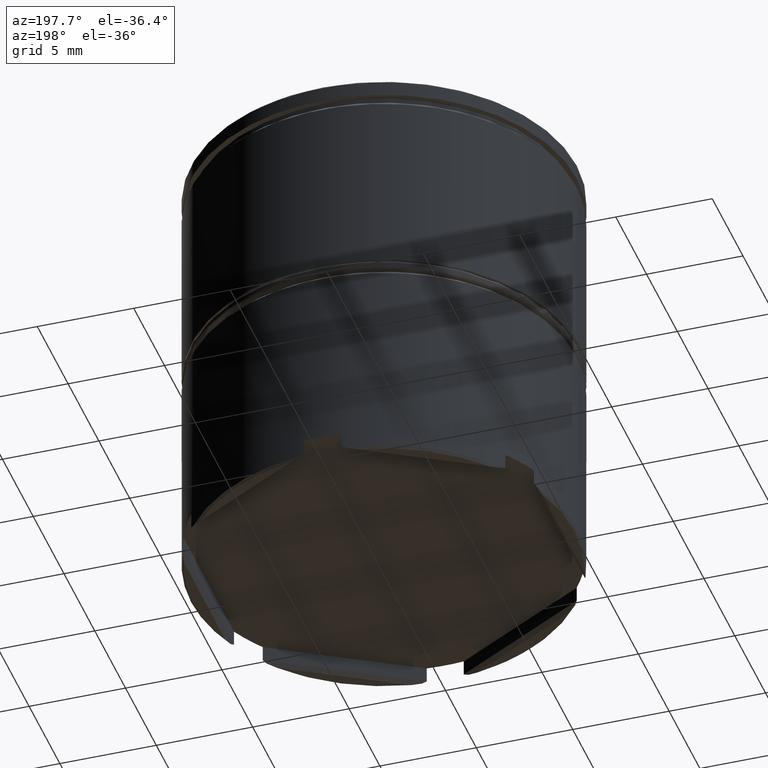
[diagram: clean part render]
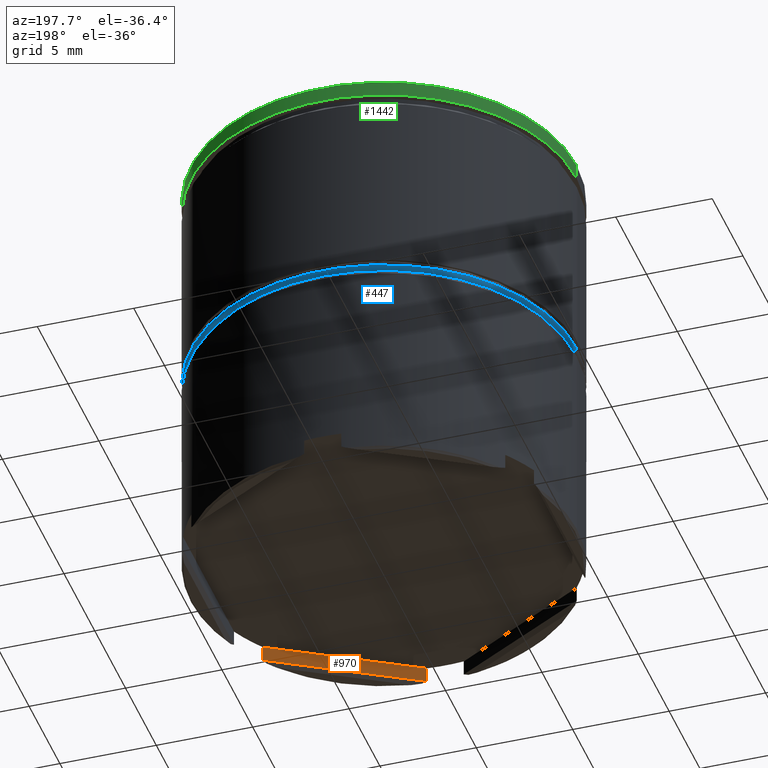
[diagram: same view with three faces highlighted in distinct colors, each labeled with its STEP entity id]
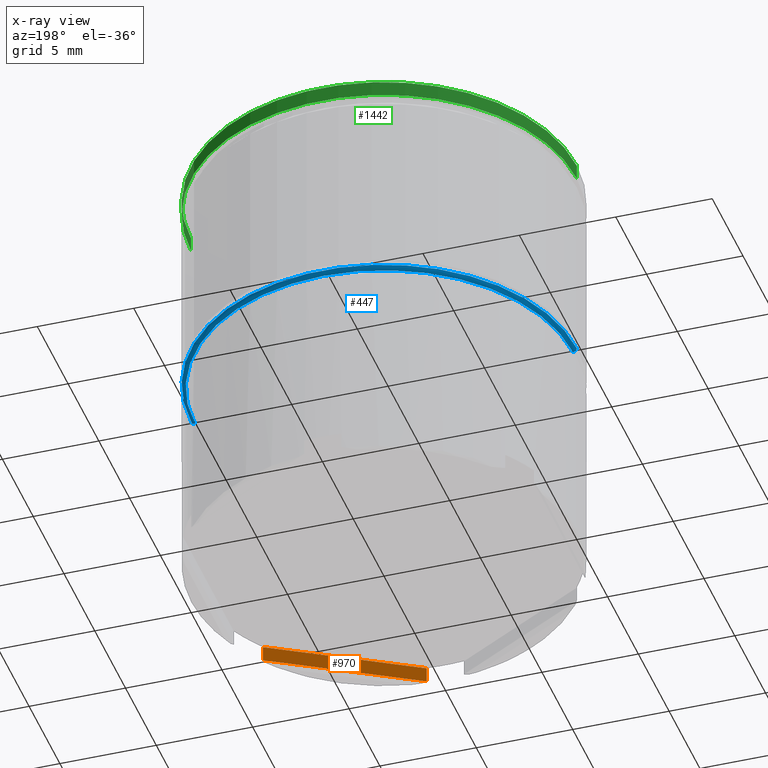
[diagram: x-ray of the same camera — body ghosted, the three highlighted faces saturated]
A machine part, auxiliary view with three faces highlighted in distinct colors.
The next image is the same camera in x-ray (body ghosted, the three faces saturated) — at least one of them is partly hidden behind the body in this view.
Their STEP definitions:

[orange] entity #970 — the highlighted planar face has unit normal (0.5, -0.866, 0).
#57 = DIRECTION ( 'NONE',  ( -0.8660254037844387076, -0.4999999999999997224, 0.000000000000000000 ) ) ;
#177 = DIRECTION ( 'NONE',  ( 0.8660254037844387076, 0.4999999999999997224, 0.000000000000000000 ) ) ;
#196 = ORIENTED_EDGE ( 'NONE', *, *, #1228, .T. ) ;
#224 = VERTEX_POINT ( 'NONE', #1153 ) ;
#333 = VECTOR ( 'NONE', #457, 1000.000000000000114 ) ;
#345 = DIRECTION ( 'NONE',  ( -0.000000000000000000, -0.000000000000000000, 1.000000000000000000 ) ) ;
#369 = FACE_OUTER_BOUND ( 'NONE', #1159, .T. ) ;
#457 = DIRECTION ( 'NONE',  ( -0.8660254037844387076, -0.4999999999999997224, 0.000000000000000000 ) ) ;
#482 = CARTESIAN_POINT ( 'NONE',  ( 9.100000000000001421, -5.253887449625596950, -21.50000000000000000 ) ) ;
#515 = ORIENTED_EDGE ( 'NONE', *, *, #1131, .T. ) ;
#548 = VERTEX_POINT ( 'NONE', #1296 ) ;
#582 = DIRECTION ( 'NONE',  ( 0.000000000000000000, 0.000000000000000000, -1.000000000000000000 ) ) ;
#584 = CARTESIAN_POINT ( 'NONE',  ( 0.9593872389242583676, -9.953872418601179106, 0.000000000000000000 ) ) ;
#636 = LINE ( 'NONE', #1158, #1028 ) ;
#641 = DIRECTION ( 'NONE',  ( 0.4999999999999997780, -0.8660254037844388186, 0.000000000000000000 ) ) ;
#681 = ORIENTED_EDGE ( 'NONE', *, *, #1467, .F. ) ;
#710 = VECTOR ( 'NONE', #582, 1000.000000000000000 ) ;
#743 = LINE ( 'NONE', #482, #333 ) ;
#788 = CARTESIAN_POINT ( 'NONE',  ( 0.9593872389242552590, -9.953872418601180883, -21.50000000000000000 ) ) ;
#951 = EDGE_CURVE ( 'NONE', #224, #1041, #1338, .T. ) ;
#970 = ADVANCED_FACE ( 'NONE', ( #369 ), #1451, .F. ) ;
#1028 = VECTOR ( 'NONE', #57, 1000.000000000000114 ) ;
#1041 = VERTEX_POINT ( 'NONE', #1174 ) ;
#1089 = CARTESIAN_POINT ( 'NONE',  ( 8.140612761075740167, -5.807789930275612633, 0.000000000000000000 ) ) ;
#1093 = LINE ( 'NONE', #584, #1340 ) ;
#1131 = EDGE_CURVE ( 'NONE', #548, #1212, #1093, .T. ) ;
#1137 = ORIENTED_EDGE ( 'NONE', *, *, #951, .T. ) ;
#1153 = CARTESIAN_POINT ( 'NONE',  ( 8.140612761075741943, -5.807789930275610857, -21.50000000000000000 ) ) ;
#1158 = CARTESIAN_POINT ( 'NONE',  ( 1.173611396773171611, -9.830190043400186539, -22.30000000000000071 ) ) ;
#1159 = EDGE_LOOP ( 'NONE', ( #1137, #196, #515, #681 ) ) ;
#1174 = CARTESIAN_POINT ( 'NONE',  ( 8.140612761075740167, -5.807789930275612633, -22.30000000000000071 ) ) ;
#1191 = AXIS2_PLACEMENT_3D ( 'NONE', #1631, #641, #177 ) ;
#1212 = VERTEX_POINT ( 'NONE', #788 ) ;
#1228 = EDGE_CURVE ( 'NONE', #1041, #548, #636, .T. ) ;
#1296 = CARTESIAN_POINT ( 'NONE',  ( 0.9593872389242583676, -9.953872418601179106, -22.30000000000000071 ) ) ;
#1338 = LINE ( 'NONE', #1089, #710 ) ;
#1340 = VECTOR ( 'NONE', #345, 1000.000000000000000 ) ;
#1451 = PLANE ( 'NONE',  #1191 ) ;
#1467 = EDGE_CURVE ( 'NONE', #224, #1212, #743, .T. ) ;
#1631 = CARTESIAN_POINT ( 'NONE',  ( 9.100000000000001421, -5.253887449625596950, -21.50000000000000000 ) ) ;

[blue] entity #447 — the highlighted toroidal blend (fillet) surface has major radius 9.8 mm and minor (blend) radius 0.2 mm.
#5 = TOROIDAL_SURFACE ( 'NONE', #750, 9.799999999999998934, 0.2000000000000000111 ) ;
#27 = CARTESIAN_POINT ( 'NONE',  ( 0.000000000000000000, 0.000000000000000000, -11.29999999999999716 ) ) ;
#30 = DIRECTION ( 'NONE',  ( 1.000000000000000000, 0.000000000000000000, 0.000000000000000000 ) ) ;
#37 = CIRCLE ( 'NONE', #525, 0.2000000000000005107 ) ;
#52 = VERTEX_POINT ( 'NONE', #455 ) ;
#59 = EDGE_CURVE ( 'NONE', #1530, #52, #889, .T. ) ;
#104 = DIRECTION ( 'NONE',  ( 0.000000000000000000, 0.000000000000000000, -1.000000000000000000 ) ) ;
#141 = AXIS2_PLACEMENT_3D ( 'NONE', #1390, #1526, #30 ) ;
#193 = AXIS2_PLACEMENT_3D ( 'NONE', #27, #517, #540 ) ;
#229 = VERTEX_POINT ( 'NONE', #1424 ) ;
#323 = EDGE_LOOP ( 'NONE', ( #1412, #1302, #851, #669 ) ) ;
#354 = CARTESIAN_POINT ( 'NONE',  ( -9.799999999999998934, 1.200153863164406148E-15, -11.29999999999999716 ) ) ;
#359 = AXIS2_PLACEMENT_3D ( 'NONE', #354, #865, #591 ) ;
#376 = FACE_OUTER_BOUND ( 'NONE', #323, .T. ) ;
#447 = ADVANCED_FACE ( 'NONE', ( #376 ), #5, .T. ) ;
#455 = CARTESIAN_POINT ( 'NONE',  ( -10.00000000000000000, 1.224646799147353059E-15, -11.29999999999999716 ) ) ;
#466 = VERTEX_POINT ( 'NONE', #1141 ) ;
#494 = CIRCLE ( 'NONE', #141, 9.799999999999998934 ) ;
#517 = DIRECTION ( 'NONE',  ( 0.000000000000000000, 0.000000000000000000, 1.000000000000000000 ) ) ;
#525 = AXIS2_PLACEMENT_3D ( 'NONE', #946, #707, #104 ) ;
#540 = DIRECTION ( 'NONE',  ( 1.000000000000000000, 0.000000000000000000, 0.000000000000000000 ) ) ;
#591 = DIRECTION ( 'NONE',  ( -1.000000000000000000, 1.224646799147353207E-16, 0.000000000000000000 ) ) ;
#669 = ORIENTED_EDGE ( 'NONE', *, *, #687, .F. ) ;
#687 = EDGE_CURVE ( 'NONE', #229, #466, #37, .T. ) ;
#707 = DIRECTION ( 'NONE',  ( 0.000000000000000000, -1.000000000000000000, 0.000000000000000000 ) ) ;
#750 = AXIS2_PLACEMENT_3D ( 'NONE', #852, #973, #1484 ) ;
#851 = ORIENTED_EDGE ( 'NONE', *, *, #1000, .F. ) ;
#852 = CARTESIAN_POINT ( 'NONE',  ( 0.000000000000000000, 0.000000000000000000, -11.29999999999999716 ) ) ;
#865 = DIRECTION ( 'NONE',  ( 1.224646799147353207E-16, 1.000000000000000000, -0.000000000000000000 ) ) ;
#889 = CIRCLE ( 'NONE', #359, 0.2000000000000005107 ) ;
#946 = CARTESIAN_POINT ( 'NONE',  ( 9.799999999999998934, 0.000000000000000000, -11.29999999999999716 ) ) ;
#973 = DIRECTION ( 'NONE',  ( 0.000000000000000000, 0.000000000000000000, 1.000000000000000000 ) ) ;
#1000 = EDGE_CURVE ( 'NONE', #466, #52, #1124, .T. ) ;
#1124 = CIRCLE ( 'NONE', #193, 10.00000000000000000 ) ;
#1141 = CARTESIAN_POINT ( 'NONE',  ( 10.00000000000000000, 0.000000000000000000, -11.29999999999999716 ) ) ;
#1302 = ORIENTED_EDGE ( 'NONE', *, *, #59, .T. ) ;
#1367 = EDGE_CURVE ( 'NONE', #1530, #229, #494, .T. ) ;
#1390 = CARTESIAN_POINT ( 'NONE',  ( 0.000000000000000000, 0.000000000000000000, -11.49999999999999822 ) ) ;
#1412 = ORIENTED_EDGE ( 'NONE', *, *, #1367, .F. ) ;
#1424 = CARTESIAN_POINT ( 'NONE',  ( 9.799999999999998934, 0.000000000000000000, -11.49999999999999822 ) ) ;
#1484 = DIRECTION ( 'NONE',  ( 1.000000000000000000, 0.000000000000000000, 0.000000000000000000 ) ) ;
#1526 = DIRECTION ( 'NONE',  ( -0.000000000000000000, -0.000000000000000000, -1.000000000000000000 ) ) ;
#1530 = VERTEX_POINT ( 'NONE', #1560 ) ;
#1560 = CARTESIAN_POINT ( 'NONE',  ( -9.799999999999998934, 1.212400331155879505E-15, -11.49999999999999822 ) ) ;

[green] entity #1442 — the highlighted cylindrical surface (partial cylindrical patch) has radius 10 mm, axis along (-0, -0, 1).
#11 = AXIS2_PLACEMENT_3D ( 'NONE', #795, #416, #15 ) ;
#15 = DIRECTION ( 'NONE',  ( 1.000000000000000000, 0.000000000000000000, 0.000000000000000000 ) ) ;
#79 = ORIENTED_EDGE ( 'NONE', *, *, #186, .T. ) ;
#93 = CARTESIAN_POINT ( 'NONE',  ( 10.00000000000000000, 0.000000000000000000, -0.1000000000000011297 ) ) ;
#114 = CIRCLE ( 'NONE', #419, 10.00000000000000000 ) ;
#171 = CYLINDRICAL_SURFACE ( 'NONE', #11, 10.00000000000000000 ) ;
#186 = EDGE_CURVE ( 'NONE', #1504, #630, #114, .T. ) ;
#210 = CARTESIAN_POINT ( 'NONE',  ( 0.000000000000000000, 0.000000000000000000, -0.8749999999999998890 ) ) ;
#290 = CARTESIAN_POINT ( 'NONE',  ( -10.00000000000000000, 1.224646799147353256E-15, -0.8749999999999998890 ) ) ;
#335 = DIRECTION ( 'NONE',  ( -0.000000000000000000, -0.000000000000000000, 1.000000000000000000 ) ) ;
#367 = CARTESIAN_POINT ( 'NONE',  ( -10.00000000000000000, 1.224646799147353256E-15, -0.1000000000000011297 ) ) ;
#383 = DIRECTION ( 'NONE',  ( 0.000000000000000000, 0.000000000000000000, -1.000000000000000000 ) ) ;
#395 = DIRECTION ( 'NONE',  ( 1.000000000000000000, 0.000000000000000000, 0.000000000000000000 ) ) ;
#416 = DIRECTION ( 'NONE',  ( -0.000000000000000000, -0.000000000000000000, 1.000000000000000000 ) ) ;
#419 = AXIS2_PLACEMENT_3D ( 'NONE', #1004, #383, #395 ) ;
#442 = VECTOR ( 'NONE', #680, 1000.000000000000000 ) ;
#630 = VERTEX_POINT ( 'NONE', #93 ) ;
#680 = DIRECTION ( 'NONE',  ( -0.000000000000000000, -0.000000000000000000, 1.000000000000000000 ) ) ;
#683 = EDGE_CURVE ( 'NONE', #1183, #1400, #837, .T. ) ;
#691 = DIRECTION ( 'NONE',  ( -0.000000000000000000, -0.000000000000000000, 1.000000000000000000 ) ) ;
#795 = CARTESIAN_POINT ( 'NONE',  ( 0.000000000000000000, 0.000000000000000000, 0.000000000000000000 ) ) ;
#802 = LINE ( 'NONE', #1309, #926 ) ;
#829 = LINE ( 'NONE', #1447, #442 ) ;
#837 = CIRCLE ( 'NONE', #886, 10.00000000000000000 ) ;
#848 = DIRECTION ( 'NONE',  ( 1.000000000000000000, 0.000000000000000000, 0.000000000000000000 ) ) ;
#886 = AXIS2_PLACEMENT_3D ( 'NONE', #210, #335, #848 ) ;
#926 = VECTOR ( 'NONE', #691, 1000.000000000000000 ) ;
#1004 = CARTESIAN_POINT ( 'NONE',  ( 0.000000000000000000, 0.000000000000000000, -0.1000000000000011297 ) ) ;
#1057 = EDGE_CURVE ( 'NONE', #1400, #1504, #829, .T. ) ;
#1118 = CARTESIAN_POINT ( 'NONE',  ( 10.00000000000000000, 0.000000000000000000, -0.8749999999999998890 ) ) ;
#1183 = VERTEX_POINT ( 'NONE', #1118 ) ;
#1245 = ORIENTED_EDGE ( 'NONE', *, *, #1514, .F. ) ;
#1287 = FACE_OUTER_BOUND ( 'NONE', #1623, .T. ) ;
#1309 = CARTESIAN_POINT ( 'NONE',  ( 10.00000000000000000, 0.000000000000000000, 0.000000000000000000 ) ) ;
#1400 = VERTEX_POINT ( 'NONE', #290 ) ;
#1426 = ORIENTED_EDGE ( 'NONE', *, *, #1057, .T. ) ;
#1442 = ADVANCED_FACE ( 'NONE', ( #1287 ), #171, .T. ) ;
#1447 = CARTESIAN_POINT ( 'NONE',  ( -10.00000000000000000, 1.224646799147353256E-15, 0.000000000000000000 ) ) ;
#1504 = VERTEX_POINT ( 'NONE', #367 ) ;
#1514 = EDGE_CURVE ( 'NONE', #1183, #630, #802, .T. ) ;
#1623 = EDGE_LOOP ( 'NONE', ( #1634, #1426, #79, #1245 ) ) ;
#1634 = ORIENTED_EDGE ( 'NONE', *, *, #683, .T. ) ;